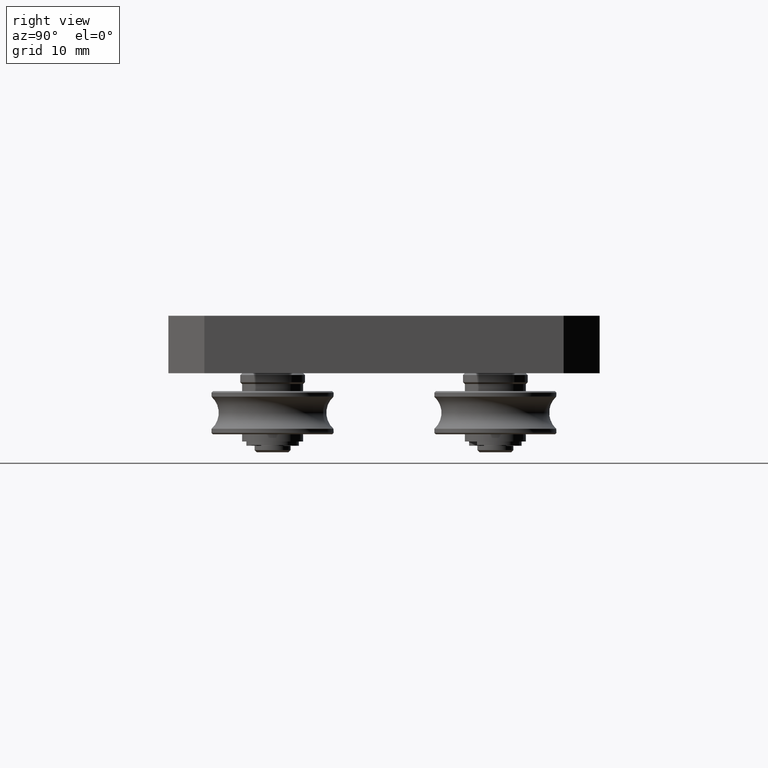
[diagram: clean part render]
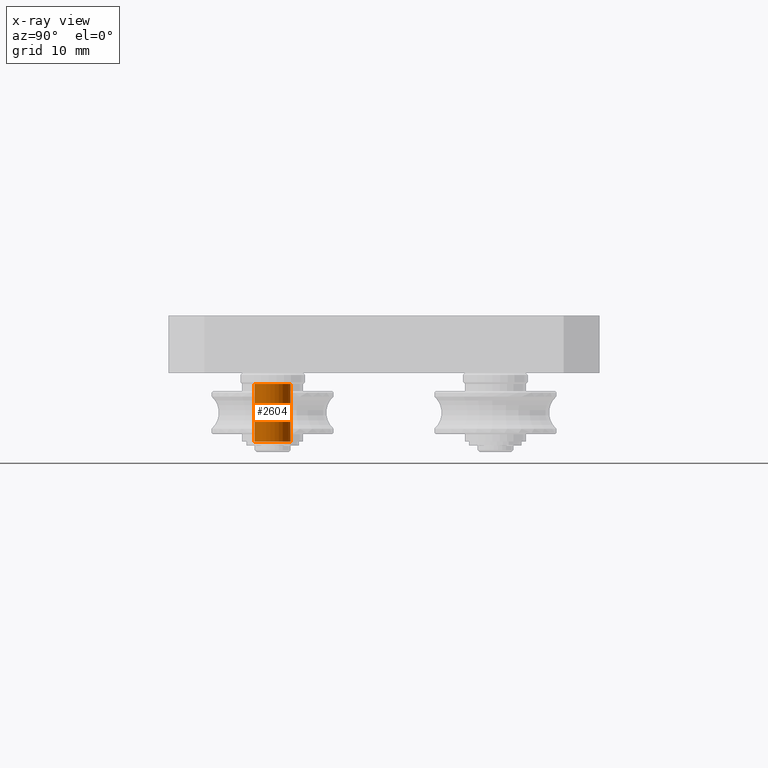
[diagram: x-ray — body ghosted, one internal face saturated and labeled with its STEP entity id]
A machine part, right view, then the same camera in x-ray: the body is ghosted and one INTERNAL B-rep face — a face not visible from any outside direction — is saturated and labeled: STEP entity #2604.
In plain terms, the highlighted cylindrical surface (bore or boss wall) has radius 2.5 mm, axis along (0, 0, 1).
Its self-contained STEP definition (entity closure, byte-faithful):
#158=CYLINDRICAL_SURFACE('',#3067,2.5);
#297=CIRCLE('',#3059,2.5);
#300=CIRCLE('',#3066,2.5);
#459=FACE_OUTER_BOUND('',#646,.T.);
#646=EDGE_LOOP('',(#2191,#2192,#2193,#2194));
#848=LINE('',#4552,#1056);
#1056=VECTOR('',#3768,2.5);
#1263=VERTEX_POINT('',#4538);
#1265=VERTEX_POINT('',#4549);
#1578=EDGE_CURVE('',#1263,#1263,#297,.T.);
#1583=EDGE_CURVE('',#1265,#1265,#300,.T.);
#1584=EDGE_CURVE('',#1265,#1263,#848,.T.);
#2191=ORIENTED_EDGE('',*,*,#1583,.T.);
#2192=ORIENTED_EDGE('',*,*,#1584,.T.);
#2193=ORIENTED_EDGE('',*,*,#1578,.F.);
#2194=ORIENTED_EDGE('',*,*,#1584,.F.);
#2604=ADVANCED_FACE('',(#459),#158,.F.);
#3059=AXIS2_PLACEMENT_3D('',#4539,#3748,#3749);
#3066=AXIS2_PLACEMENT_3D('',#4550,#3764,#3765);
#3067=AXIS2_PLACEMENT_3D('',#4551,#3766,#3767);
#3748=DIRECTION('center_axis',(1.,0.,0.));
#3749=DIRECTION('ref_axis',(0.,1.,0.));
#3764=DIRECTION('center_axis',(1.,0.,0.));
#3765=DIRECTION('ref_axis',(0.,1.,0.));
#3766=DIRECTION('center_axis',(1.,0.,0.));
#3767=DIRECTION('ref_axis',(0.,1.,0.));
#3768=DIRECTION('',(-1.,0.,0.));
#4538=CARTESIAN_POINT('',(-4.,-2.5,-3.06161699786838E-16));
#4539=CARTESIAN_POINT('Origin',(-4.,0.,0.));
#4549=CARTESIAN_POINT('',(4.,-2.5,-3.06161699786838E-16));
#4550=CARTESIAN_POINT('Origin',(4.,0.,0.));
#4551=CARTESIAN_POINT('Origin',(0.,0.,0.));
#4552=CARTESIAN_POINT('',(0.,-2.5,-3.06161699786838E-16));